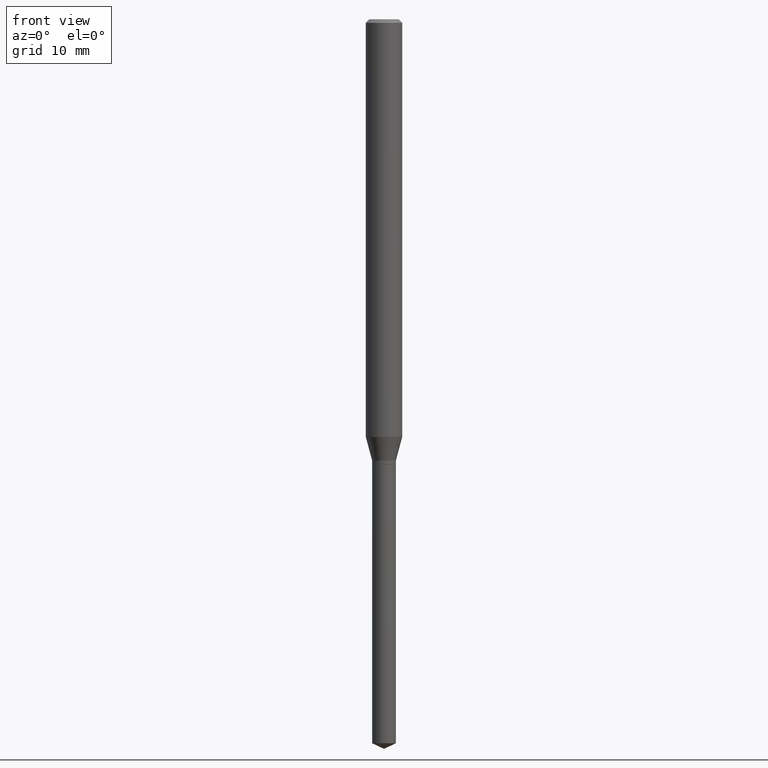
[diagram: clean part render]
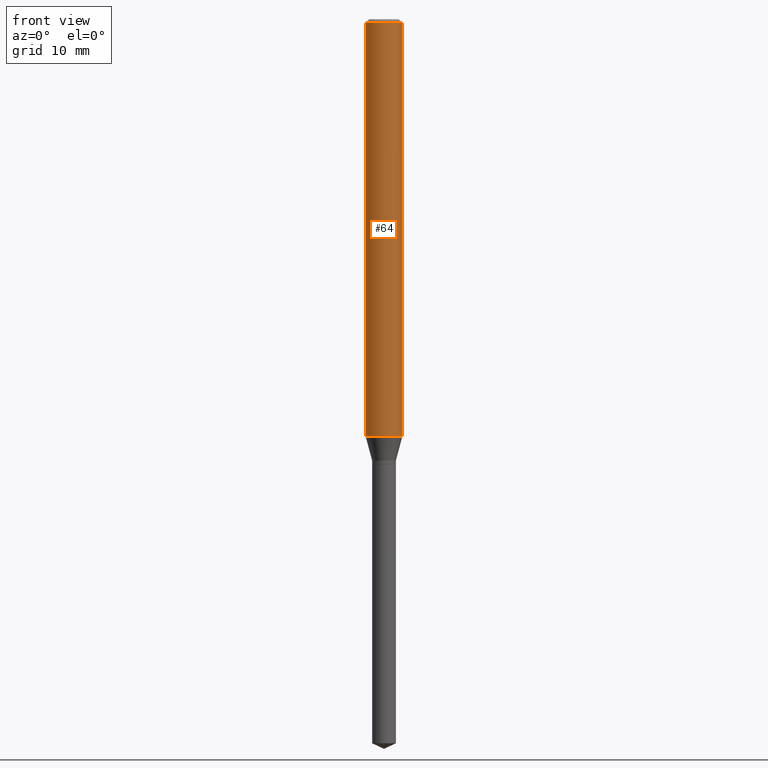
[diagram: same view with one face highlighted and labeled with its STEP entity id]
A machine part, front view. The second image highlights one B-rep face of the part: STEP entity #64.
In plain terms, the highlighted cylindrical surface (edge-blend (fillet) strip) has radius 1.4999 mm, axis along (-0, 0, 1).
Its self-contained STEP definition (entity closure, byte-faithful):
#17 = VERTEX_POINT ( 'NONE', #235 ) ;
#22 = CIRCLE ( 'NONE', #383, 0.05904999999999999832 ) ;
#39 = CARTESIAN_POINT ( 'NONE',  ( -0.05905000000000017180, -4.301372178265801635E-15, -1.352133150823702445 ) ) ;
#40 = DIRECTION ( 'NONE',  ( -2.445468806185136877E-29, 3.491481338843145188E-15, 1.000000000000000000 ) ) ;
#46 = DIRECTION ( 'NONE',  ( 1.000000000000000000, -6.982962677686266711E-15, 0.000000000000000000 ) ) ;
#63 = ORIENTED_EDGE ( 'NONE', *, *, #479, .F. ) ;
#64 = ADVANCED_FACE ( 'NONE', ( #406 ), #453, .T. ) ;
#85 = DIRECTION ( 'NONE',  ( -2.445468806185136877E-29, 3.491481338843145188E-15, 1.000000000000000000 ) ) ;
#106 = DIRECTION ( 'NONE',  ( -2.445468806185136597E-29, 3.491481338843145583E-15, 1.000000000000000000 ) ) ;
#122 = CARTESIAN_POINT ( 'NONE',  ( 0.05905000000000008159, -4.123439461173746736E-16, 2.879382386107504424E-30 ) ) ;
#142 = CARTESIAN_POINT ( 'NONE',  ( 0.000000000000000000, 0.000000000000000000, 0.000000000000000000 ) ) ;
#150 = CARTESIAN_POINT ( 'NONE',  ( 3.306599442148187304E-29, -4.720947663732141917E-15, -1.352133150823702445 ) ) ;
#151 = VECTOR ( 'NONE', #40, 39.37007874015748143 ) ;
#160 = CIRCLE ( 'NONE', #310, 0.05905000000000015792 ) ;
#176 = CARTESIAN_POINT ( 'NONE',  ( -0.05905000000000008159, 4.195754854663397395E-16, -2.904631170795525745E-30 ) ) ;
#177 = EDGE_CURVE ( 'NONE', #459, #17, #349, .T. ) ;
#191 = VERTEX_POINT ( 'NONE', #320 ) ;
#198 = VERTEX_POINT ( 'NONE', #241 ) ;
#235 = CARTESIAN_POINT ( 'NONE',  ( -0.05904999999999999832, -1.961515543705598752E-15, -0.01181000000000007044 ) ) ;
#241 = CARTESIAN_POINT ( 'NONE',  ( 0.05905000000000017180, -5.133291609849517626E-15, -1.352133150823702445 ) ) ;
#246 = EDGE_CURVE ( 'NONE', #198, #191, #397, .T. ) ;
#270 = DIRECTION ( 'NONE',  ( -2.445468806185136597E-29, 3.491481338843145583E-15, 1.000000000000000000 ) ) ;
#298 = DIRECTION ( 'NONE',  ( -2.445468806185136597E-29, 3.491481338843145583E-15, 1.000000000000000000 ) ) ;
#309 = AXIS2_PLACEMENT_3D ( 'NONE', #142, #106, #480 ) ;
#310 = AXIS2_PLACEMENT_3D ( 'NONE', #150, #298, #391 ) ;
#316 = ORIENTED_EDGE ( 'NONE', *, *, #246, .T. ) ;
#320 = CARTESIAN_POINT ( 'NONE',  ( 0.05904999999999999832, -4.535783407291118600E-16, -0.01181000000000007044 ) ) ;
#349 = LINE ( 'NONE', #176, #409 ) ;
#359 = CARTESIAN_POINT ( 'NONE',  ( 2.888098660104663766E-31, -4.123439461173779647E-17, -0.01181000000000007044 ) ) ;
#383 = AXIS2_PLACEMENT_3D ( 'NONE', #359, #270, #46 ) ;
#391 = DIRECTION ( 'NONE',  ( 1.000000000000000000, -6.982962677686270655E-15, 0.000000000000000000 ) ) ;
#397 = LINE ( 'NONE', #122, #151 ) ;
#406 = FACE_OUTER_BOUND ( 'NONE', #482, .T. ) ;
#409 = VECTOR ( 'NONE', #85, 39.37007874015748143 ) ;
#424 = ORIENTED_EDGE ( 'NONE', *, *, #442, .T. ) ;
#442 = EDGE_CURVE ( 'NONE', #459, #198, #160, .T. ) ;
#453 = CYLINDRICAL_SURFACE ( 'NONE', #309, 0.05905000000000008159 ) ;
#459 = VERTEX_POINT ( 'NONE', #39 ) ;
#467 = ORIENTED_EDGE ( 'NONE', *, *, #177, .F. ) ;
#479 = EDGE_CURVE ( 'NONE', #17, #191, #22, .T. ) ;
#480 = DIRECTION ( 'NONE',  ( 1.000000000000000000, -6.982962677686267499E-15, 4.876176775795936353E-29 ) ) ;
#482 = EDGE_LOOP ( 'NONE', ( #467, #424, #316, #63 ) ) ;